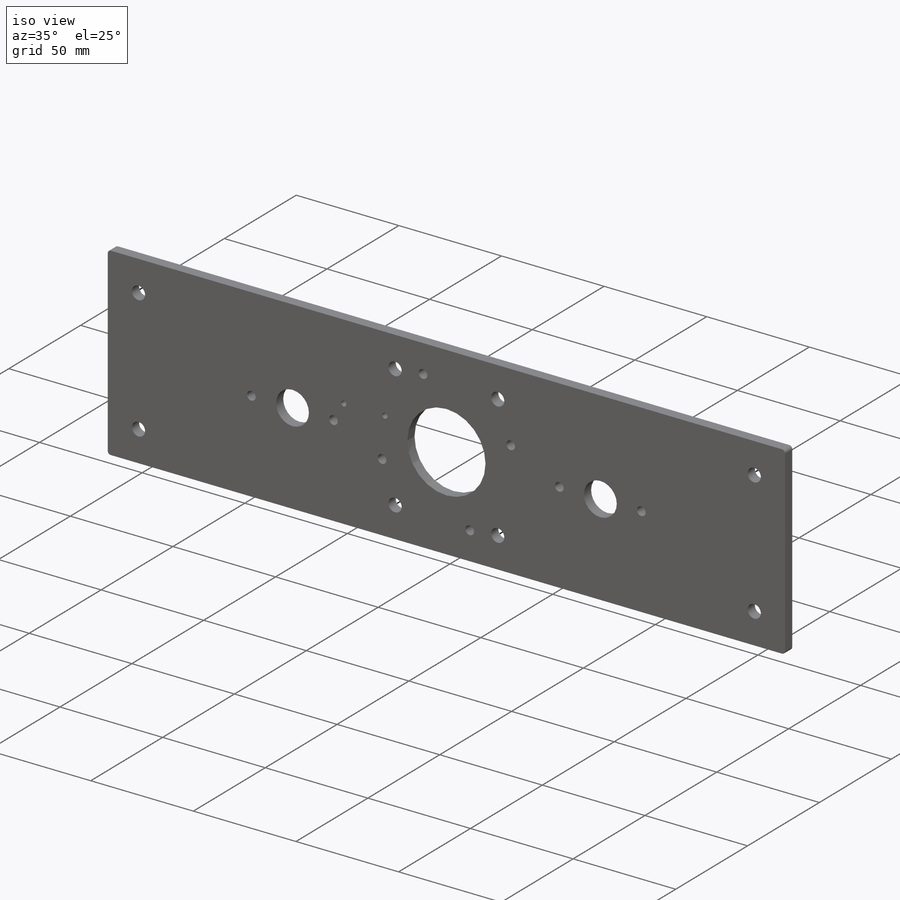
[diagram: iso view]
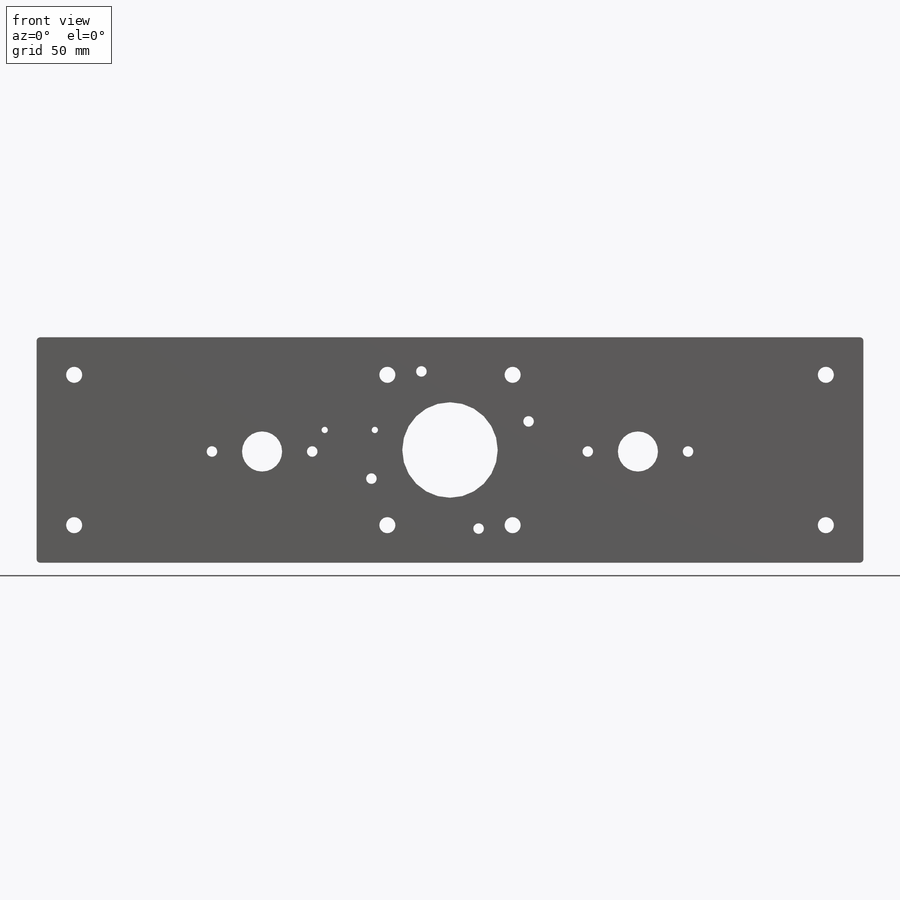
[diagram: front view]
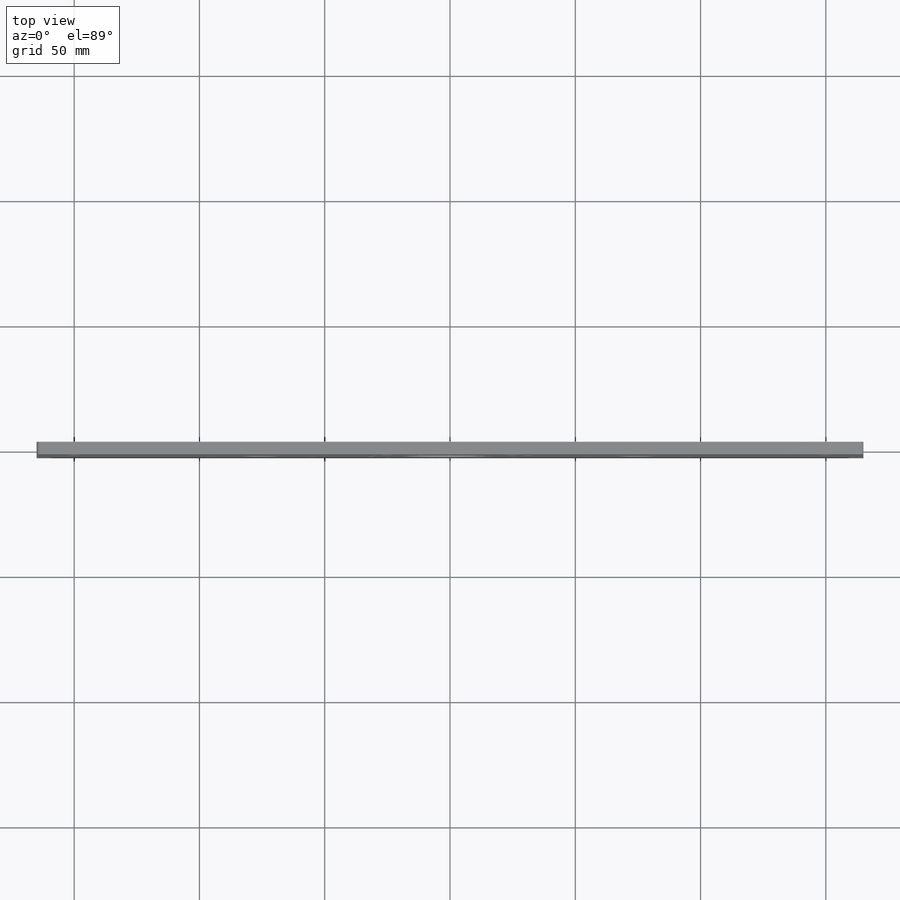
[diagram: top view]
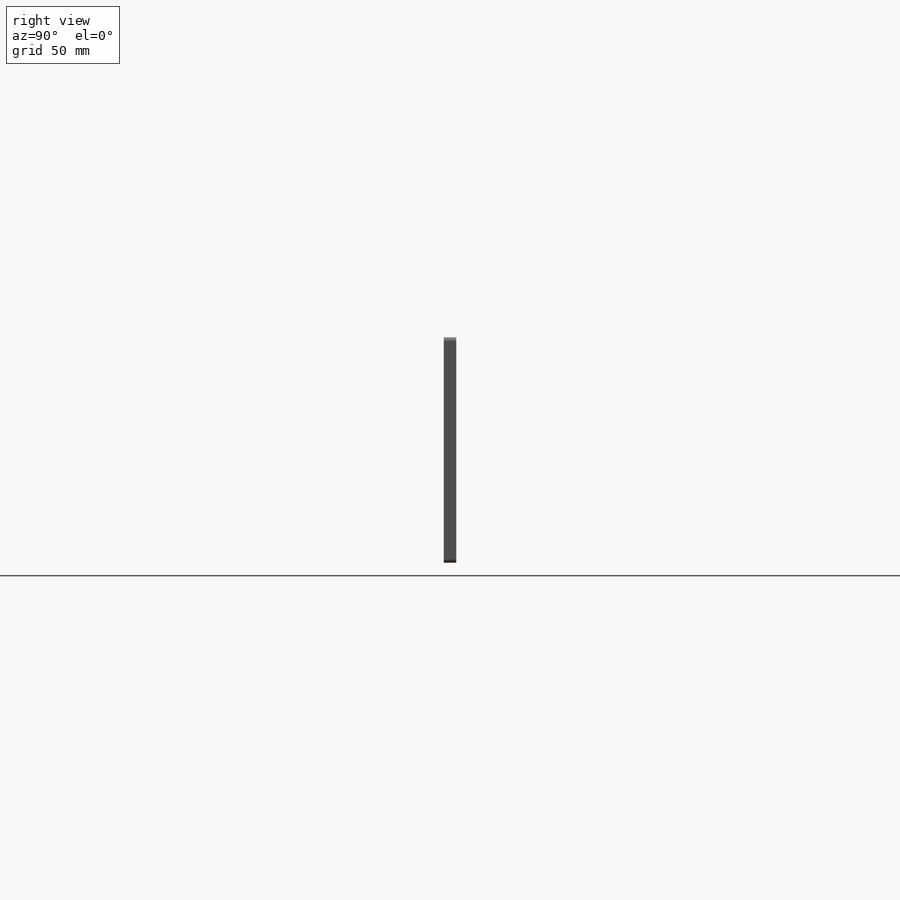
[diagram: right view]
SOLIDWORKS PART (.sldprt)
format: sldprt  version: not decoded by parser v0  size: 418,816 bytes
history: native  units: mm
features: sketch x10, thread x8, hole x4, mirror x2, material x1, extrude x1, cut_extrude x1, fillet x1 (+12 scaffold rows collapsed)
feature tree (40):
  scaffold x12  (default folders/planes/origin — collapsed)
  material  "Material <not specified>"
  sketch  "Sketch1"  dims[c1.D3=38.1mm c1.D4=5.1mm c1.D5=5.1mm c1.D8=4.2mm c1.D9=4.2mm c1.D10=4.2mm c1.D11=4.2mm c1.D1=90.0mm c1.D2=330.0mm c2.D5=~20.687326mm c2.D6=33.285mm c2.D7=33.285mm c2.D4=47.2mm c3.D5=47.2mm c3.D6=~66.666027mm c4.D6=90.0deg c4.D7=~33.333014mm c5.D7=90.0deg]
  extrude  "Boss-Extrude1"  Depth=5mm
  hole  "M6 Clearance Hole1"  Diameter=6.4mm Depth=5mm
  sketch  "Sketch5"  dims[D1=15.0mm D2=25.0mm D3=15.0mm D4=15.0mm D5=15.0mm D6=15.0mm D7=15.0mm D8=25.0mm]
  sketch  "Sketch4"  dims[hole-wizard template sketch: 59 standard entries collapsed; hole parameters kept: c18.Thru Hole Dia.=6.4mm c18.Thru Hole Depth=5.0mm]
  mirror  "Mirror2"
  sketch  "Sketch3"  dims[c1.D1=4.2mm c1.D2=4.2mm c1.D3=82.0mm c1.D4=80.0mm c1.D5=18.0mm c1.D6=18.0mm c1.D7=0.6mm c2.D4=75.0mm]
  cut_extrude  "Cut-Extrude2"  [1 undecoded]
  hole  "M5x0.8 Tapped Hole1"  Diameter=4.2mm Depth=5mm
  sketch  "Sketch7"  dims[D1=20.0mm D2=20.0mm]
  sketch  "Sketch6"  dims[hole-wizard template sketch: 60 standard entries collapsed; hole parameters kept: c18.Thru Tap Drill Depth=5.0mm]
  thread  "Hole Thread1"  Diameter=5mm  [1 undecoded]
  thread  "Hole Thread2"  Diameter=5mm  [1 undecoded]
  mirror  "Mirror1"
  hole  "M5x0.8 Tapped Hole3"  Diameter=4.2mm Depth=5mm
  sketch  "Sketch9"  dims[c1.D1=47.2mm c1.D2=47.2mm c1.D3=~66.75088mm c2.D3=45.0deg c3.D3=~66.75088mm c4.D3=110.0deg c4.D4=47.2mm c5.D4=90.0deg c5.D5=47.2mm c6.D5=90.0deg c6.D6=47.2mm c7.D6=90.0deg c7.D7=23.6mm c7.D8=23.6mm c7.D9=90.0deg]
  sketch  "Sketch8"  dims[hole-wizard template sketch: 60 standard entries collapsed; hole parameters kept: c18.Thru Tap Drill Depth=5.0mm]
  thread  "Hole Thread3"  Diameter=5mm  [1 undecoded]
  thread  "Hole Thread4"  Diameter=5mm  [1 undecoded]
  thread  "Hole Thread5"  Diameter=5mm  [1 undecoded]
  thread  "Hole Thread6"  Diameter=5mm  [1 undecoded]
  fillet  "Fillet1"  Radius=1.5mm
  hole  "M3x0.5 Tapped Hole1"  Diameter=2.5mm Depth=5mm
  sketch  "Sketch12"  dims[D1=20.0mm D2=8.0mm D3=30.0mm]
  sketch  "Sketch11"  dims[hole-wizard template sketch: 61 standard entries collapsed; hole parameters above]
  thread  "Hole Thread7"  Diameter=3mm  [1 undecoded]
  thread  "Hole Thread8"  Diameter=3mm  [1 undecoded]
decode coverage: 24 of 27 modeling features carry decoded parameters
note: ~ marks probable driven/reference dimensions
note: 9 parameter values undecoded
summary: Diameter pulled from absorbed wizard sketch
note: suppression state not decoded; provenance and decode notes live in map.json
